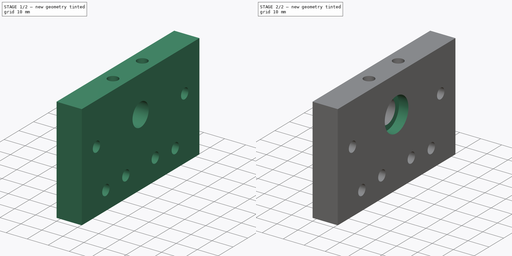
[diagram: build sequence overview — one tinted view per stage of 2, left to right]
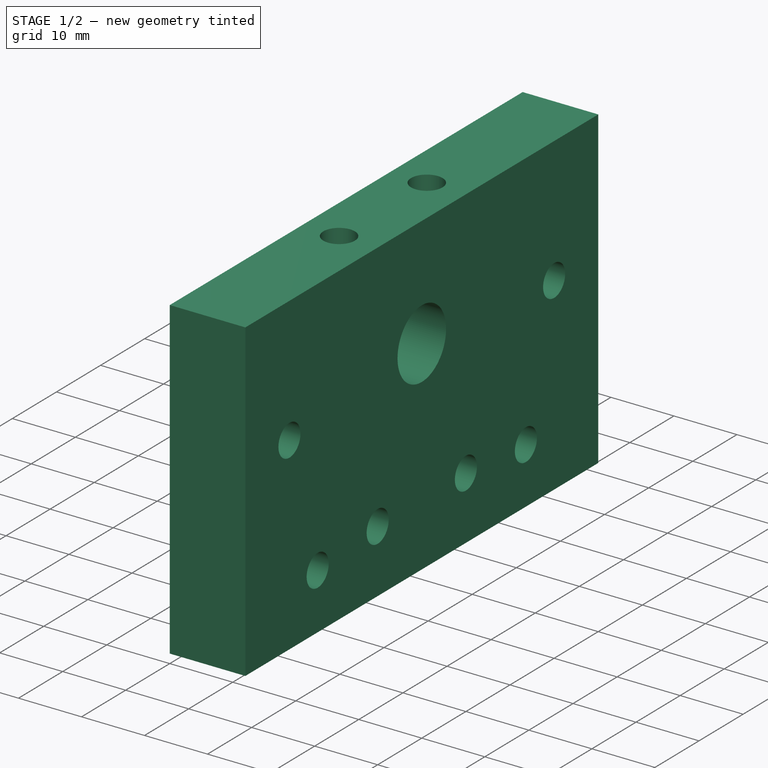
[diagram: stage 1 of 2 — iso view after this stage's code; geometry added in this stage tinted green]
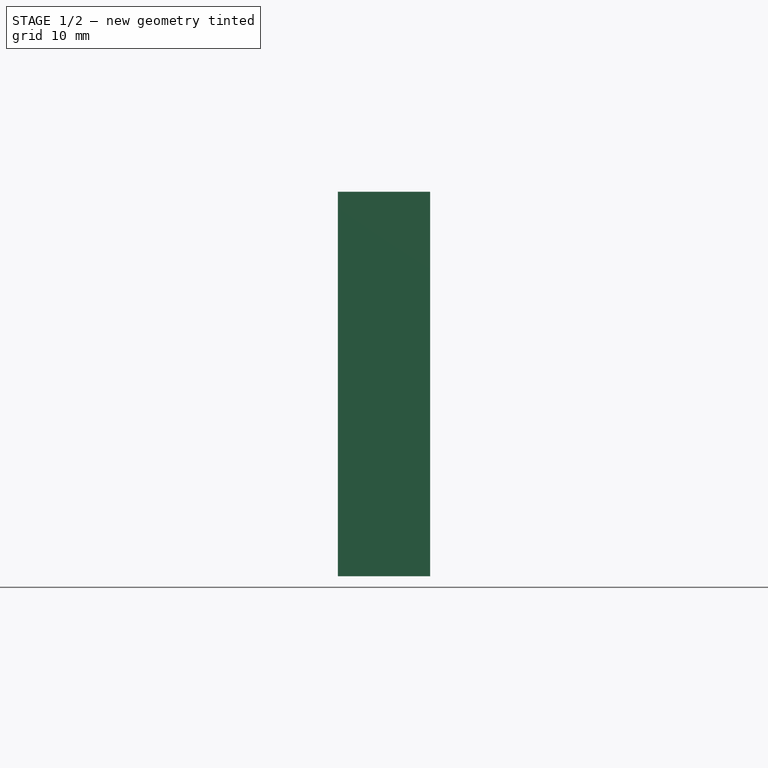
[diagram: stage 1 of 2 — front view after this stage's code; geometry added in this stage tinted green]
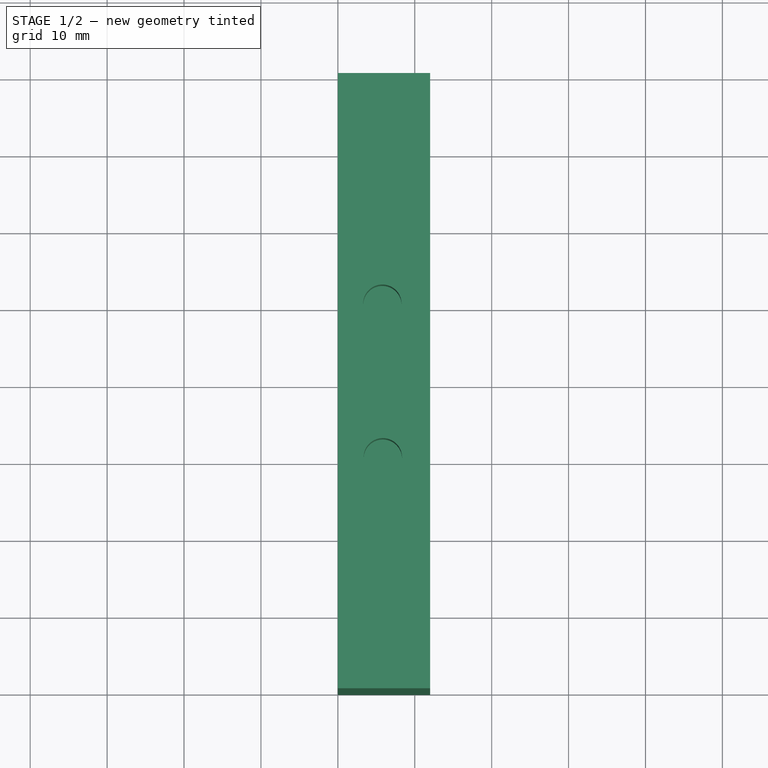
[diagram: stage 1 of 2 — top view after this stage's code; geometry added in this stage tinted green]
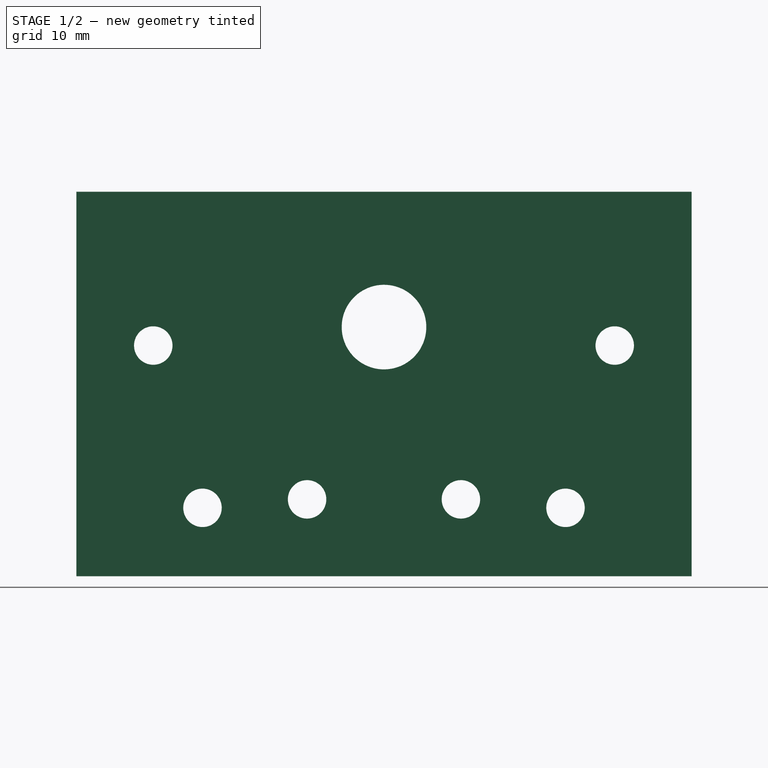
[diagram: stage 1 of 2 — right view after this stage's code; geometry added in this stage tinted green]
FCSTD DOCUMENT  (FreeCAD 0.15R4671 (Git))
Label: C-Beam End Plate
License: All rights reserved
LicenseURL: http://en.wikipedia.org/wiki/All_rights_reserved
objects: Sketcher::SketchObject×4, PartDesign::Pocket×3, PartDesign::Pad×1, App::DocumentObjectGroup×1
note: 12 computed .brp shape members not serialized (recipe doc carries the construction recipe); baked Part::Feature solids carry a one-line shape summary decoded from their .brp

FEATURE [Sketcher::SketchObject] Sketch
  Placement = pos=(0,0,0) rot=(0.57735,0.57735,0.57735;2.0944rad)
  sketch-geometry (11):
    g0: LineSegment StartX=0 StartY=0 StartZ=0 EndX=80 EndY=0 EndZ=0
    g1: LineSegment StartX=80 StartY=0 StartZ=0 EndX=80 EndY=50 EndZ=0
    g2: LineSegment StartX=80 StartY=50 StartZ=0 EndX=0 EndY=50 EndZ=0
    g3: LineSegment StartX=0 StartY=50 StartZ=0 EndX=0 EndY=0 EndZ=0
    g4: Circle CenterX=10 CenterY=30 CenterZ=0 NormalX=0 NormalY=0 NormalZ=1 Radius=2.5
    g5: Circle CenterX=30 CenterY=10 CenterZ=0 NormalX=0 NormalY=0 NormalZ=1 Radius=2.5
    g6: Circle CenterX=16.4 CenterY=8.9 CenterZ=0 NormalX=0 NormalY=0 NormalZ=1 Radius=2.5
    g7: Circle CenterX=50 CenterY=10 CenterZ=0 NormalX=0 NormalY=0 NormalZ=1 Radius=2.5
    g8: Circle CenterX=63.6 CenterY=8.9 CenterZ=0 NormalX=0 NormalY=0 NormalZ=1 Radius=2.5
    g9: Circle CenterX=70 CenterY=30 CenterZ=0 NormalX=0 NormalY=0 NormalZ=1 Radius=2.5
    g10: Circle CenterX=40 CenterY=32.4 CenterZ=0 NormalX=0 NormalY=0 NormalZ=1 Radius=5.5
  constraints (34):
    c: Coincident(g0,g1)
    c: Coincident(g1,g2)
    c: Coincident(g2,g3)
    c: Coincident(g3,g0)
    c: Horizontal(g0)
    c: Horizontal(g2)
    c: Vertical(g1)
    c: Vertical(g3)
    c: Coincident(g0,g-1)
    c: Radius(g4) = 2.5
    c: Radius(g9) = 2.5
    c: Radius(g8) = 2.5
    c: Radius(g7) = 2.5
    c: Radius(g5) = 2.5
    c: Radius(g6) = 2.5
    c: Radius(g10) = 5.5
    c: Equal(g0,g2)
    c: Equal(g3,g1)
    c: DistanceX(g2) = -80
    c: DistanceY(g3) = -50
    c: DistanceX(g1,g9) = -10
    c: DistanceY(g8,g0) = -8.9
    c: DistanceX(g8,g0) = 16.4
    c: DistanceX(g7,g0) = 30
    c: DistanceY(g7,g0) = -10
    c: DistanceX(g-1,g5) = 30
    c: DistanceY(g-1,g5) = 10
    c: DistanceY(g-1,g6) = 8.9
    c: DistanceX(g-1,g6) = 16.4
    c: DistanceX(g10,g2) = -40
    c: DistanceY(g10,g2) = 17.6
    c: DistanceY(g9,g0) = -30
    c: DistanceY(g-1,g4) = 30
    c: DistanceX(g-1,g4) = 10
FEATURE [PartDesign::Pad] Pad
  Length = 12
  Length2 = 100
  Placement = pos=(0,0,0) rot=(0.57735,0.57735,0.57735;2.0944rad)
  Sketch = -> Sketch
  Type = 0
FEATURE [Sketcher::SketchObject] Sketch001
  Placement = pos=(0,0,50) rot=(0,0,-1;1.5708rad)
  Support = -> Pad [Face3]
  sketch-geometry (2):
    g0: Circle CenterX=-30.0338 CenterY=5.85009 CenterZ=0 NormalX=0 NormalY=0 NormalZ=1 Radius=2.5
    g1: Circle CenterX=-50.0038 CenterY=5.78884 CenterZ=0 NormalX=0 NormalY=0 NormalZ=1 Radius=2.5
  constraints (2):
    c: Radius(g0) = 2.5
    c: Radius(g1) = 2.5
FEATURE [PartDesign::Pocket] Pocket
  Length = 11
  Placement = pos=(0,0,0) rot=(0.57735,0.57735,0.57735;2.0944rad)
  Sketch = -> Sketch001
  Type = 0
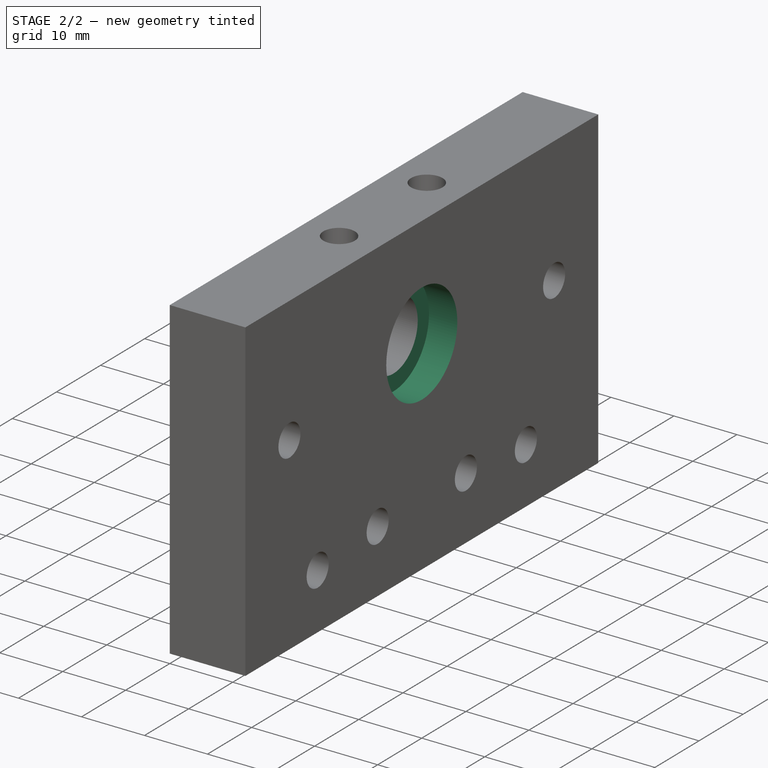
[diagram: stage 2 of 2 — iso view after this stage's code; geometry added in this stage tinted green]
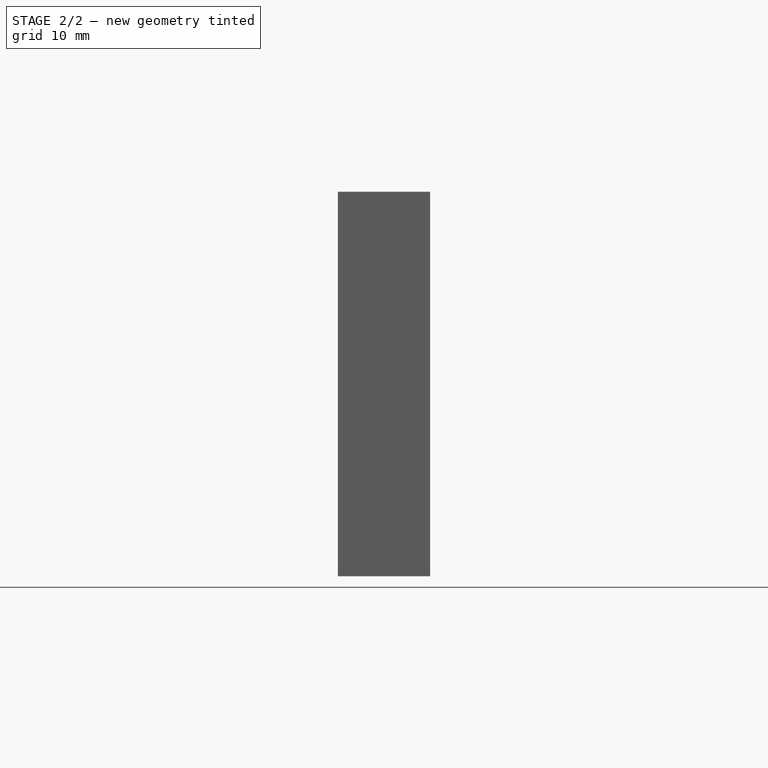
[diagram: stage 2 of 2 — front view after this stage's code; geometry added in this stage tinted green]
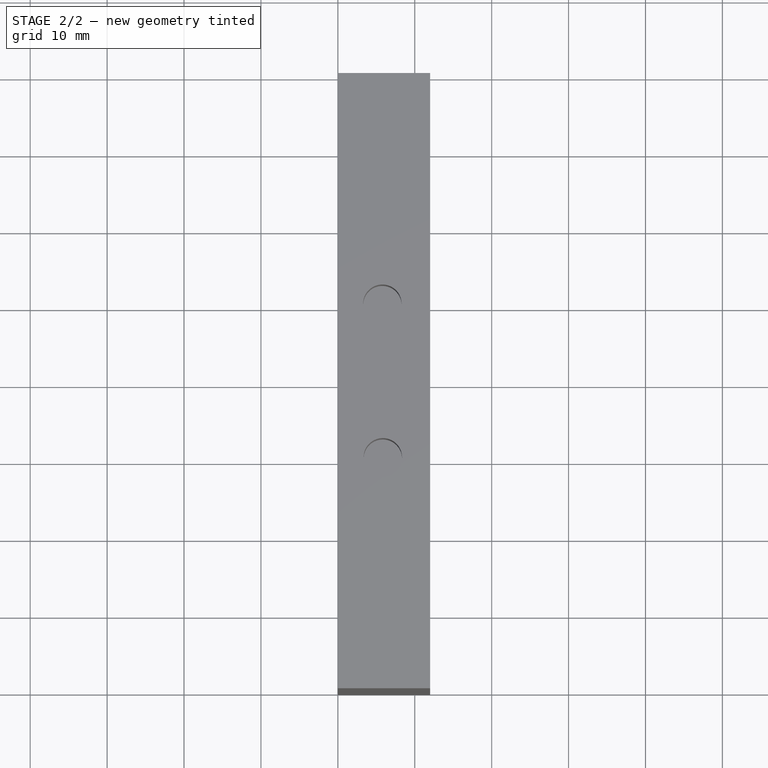
[diagram: stage 2 of 2 — top view after this stage's code; geometry added in this stage tinted green]
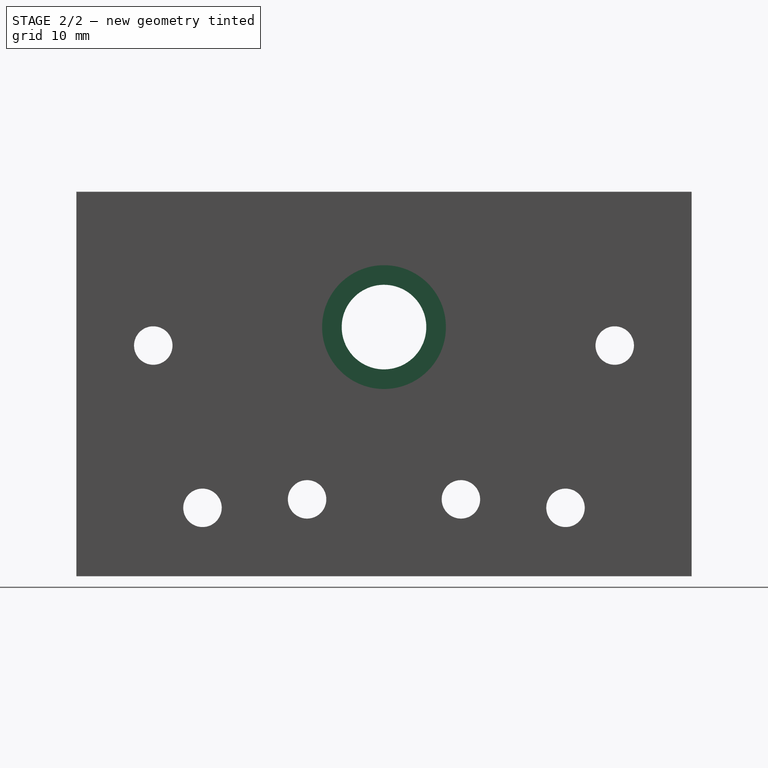
[diagram: stage 2 of 2 — right view after this stage's code; geometry added in this stage tinted green]
FEATURE [Sketcher::SketchObject] Sketch002
  Placement = pos=(12,0,0) rot=(0.57735,0.57735,0.57735;2.0944rad)
  Support = -> Pocket [Face5]
  sketch-geometry (1):
    g0: Circle CenterX=40 CenterY=32.4 CenterZ=0 NormalX=0 NormalY=0 NormalZ=1 Radius=8.05
  constraints (3):
    c: Radius(g0) = 8.05
    c: DistanceY(g-1,g0) = 32.4
    c: DistanceX(g-1,g0) = 40
FEATURE [PartDesign::Pocket] Pocket001
  Length = 4.5
  Placement = pos=(0,0,0) rot=(0.57735,0.57735,0.57735;2.0944rad)
  Sketch = -> Sketch002
  Type = 0
FEATURE [Sketcher::SketchObject] Sketch003
  Placement = pos=(0,0,0) rot=(0.57735,0.57735,-0.57735;4.18879rad)
  Support = -> Pocket001 [Face4]
  sketch-geometry (4):
    g0: Circle CenterX=10 CenterY=-30 CenterZ=0 NormalX=0 NormalY=0 NormalZ=1 Radius=4.6
    g1: Circle CenterX=70 CenterY=-30 CenterZ=0 NormalX=0 NormalY=0 NormalZ=1 Radius=4.62459
    g2: Circle CenterX=30 CenterY=-10 CenterZ=0 NormalX=0 NormalY=0 NormalZ=1 Radius=4.58345
    g3: Circle CenterX=50 CenterY=-10 CenterZ=0 NormalX=0 NormalY=0 NormalZ=1 Radius=4.6246
  constraints (9):
    c: Radius(g0) = 4.6
    c: DistanceX(g-1,g2) = 30
    c: DistanceY(g-1,g2) = -10
    c: DistanceX(g-1,g3) = 50
    c: DistanceY(g-1,g3) = -10
    c: DistanceY(g-1,g0) = -30
    c: DistanceX(g-1,g0) = 10
    c: DistanceY(g-1,g1) = -30
    c: DistanceX(g-1,g1) = 70
FEATURE [PartDesign::Pocket] Pocket002
  Length = 1.55
  Placement = pos=(0,0,0) rot=(0.57735,0.57735,0.57735;2.0944rad)
  Sketch = -> Sketch003
  Type = 0
FEATURE [App::DocumentObjectGroup] Group  label="endplate"
  Group = -> [Pad,Pocket,Pocket001,Pocket002]
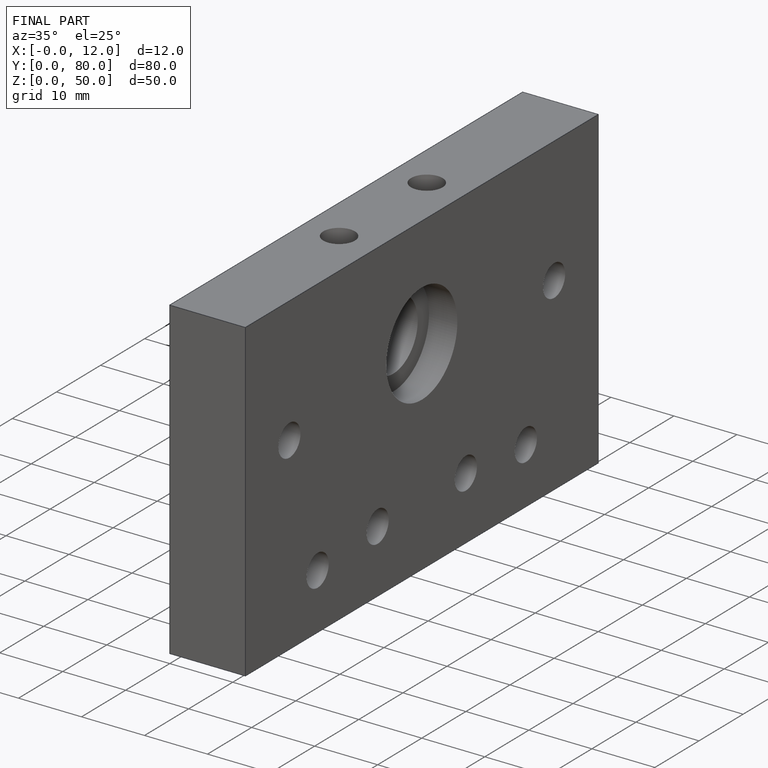
[diagram: finished part — iso view with bounding-box wireframe]
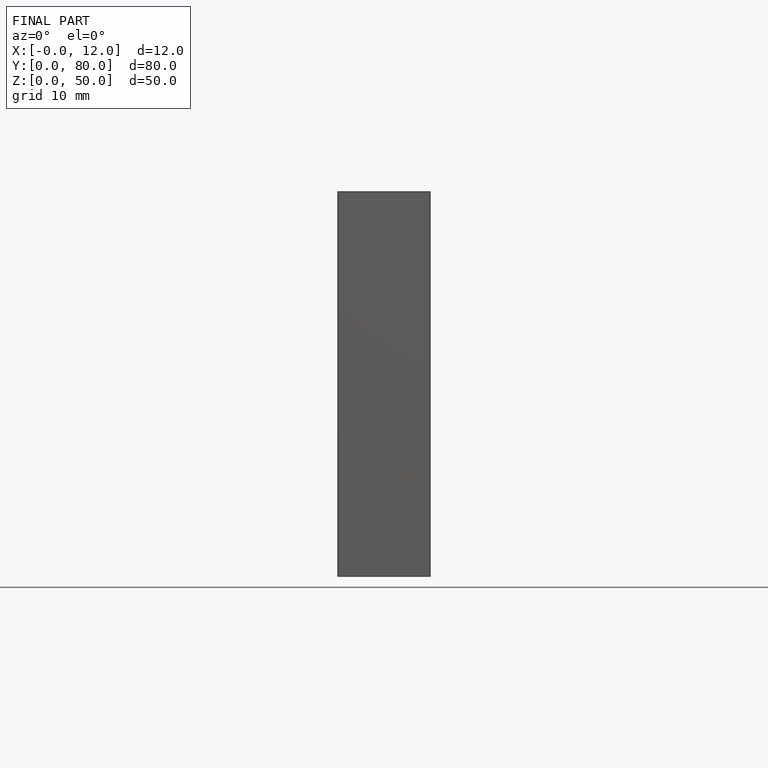
[diagram: finished part — front view with bounding-box wireframe]
